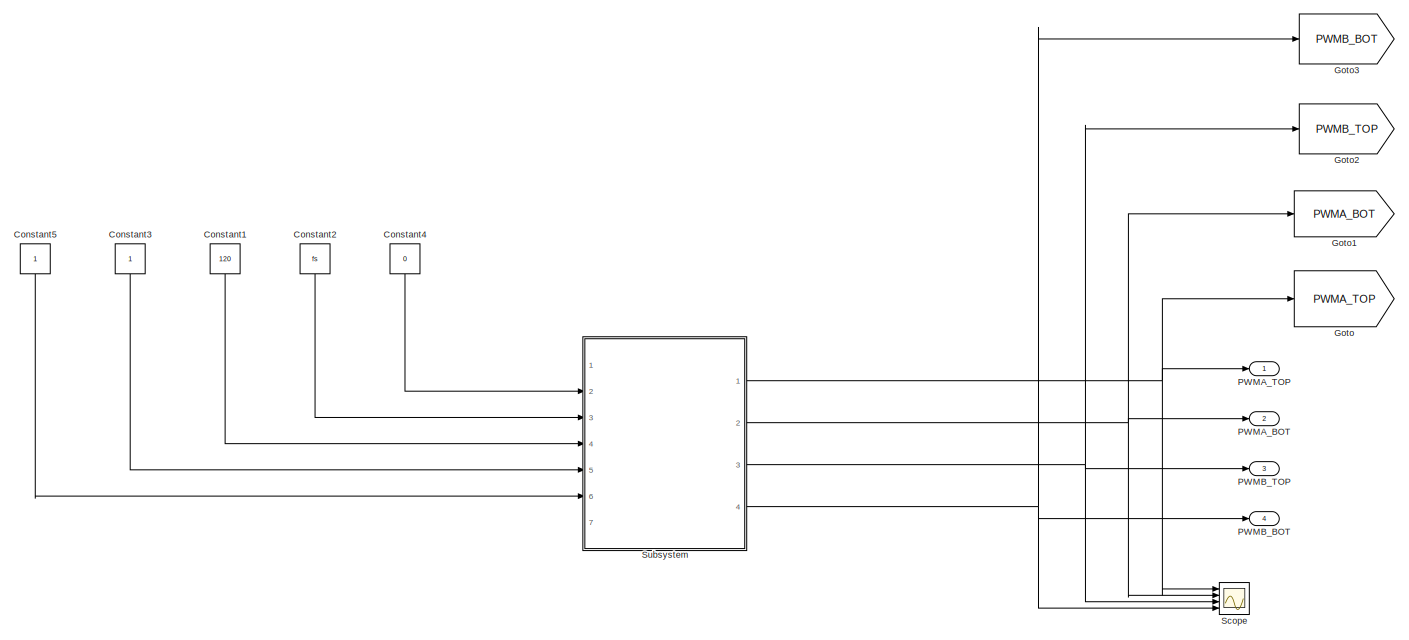
[diagram: root canvas - part 1/2, left side, full height]
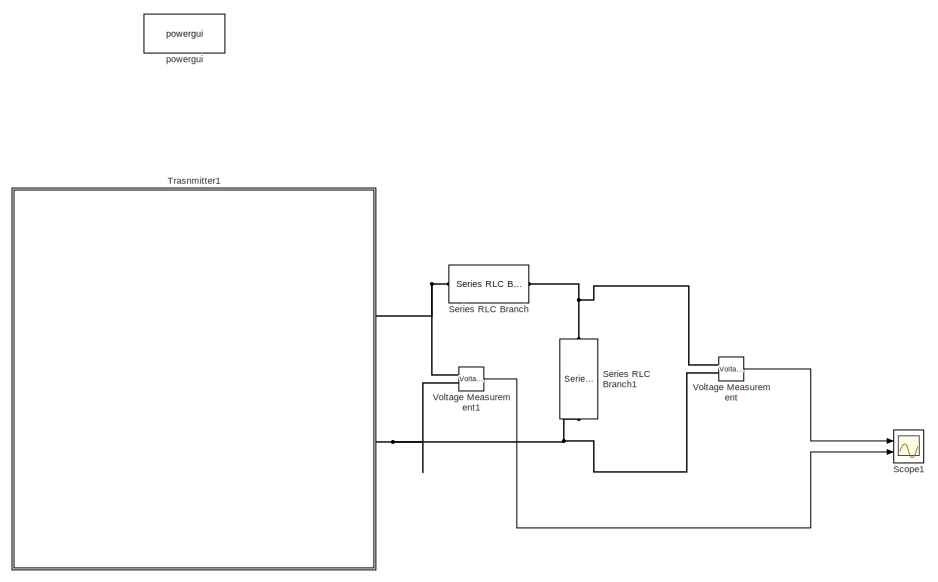
[diagram: root canvas - part 2/2, right side, full height]
MODEL slx_b57ddecea24d
KIND model
CONFIG AbsTol = auto
CONFIG EnableMultiTasking = off
CONFIG FixedStep = sampleTime
CONFIG InitFcn = fs=160e3; %Hz\nstopTime=0.01;\nsampleTime=1e-8;\ndeadtime= round(((1/fs)/20)/sampleTime);\nVdc=100;\nLp=82e-6; \nCp=1/ (Lp*4*pi*pi*150e3*150e3);\nRp=0.3;\nRLOAD=10
CONFIG MaxStep = auto
CONFIG MinStep = auto
CONFIG RelTol = 1e-3
CONFIG SampleTimeConstraint = Unconstrained
CONFIG Solver = FixedStepDiscrete
CONFIG SolverName = FixedStepDiscrete
CONFIG StartTime = 0.0
CONFIG StopTime = stopTime
BLOCK [Constant] Constant1
  Value = 120
BLOCK [Constant] Constant2
  Value = fs
BLOCK [Constant] Constant3
BLOCK [Constant] Constant4
  Value = 0
BLOCK [Constant] Constant5
BLOCK [Goto] Goto
  GotoTag = PWMA_TOP
  TagVisibility = global
BLOCK [Goto] Goto1
  GotoTag = PWMA_BOT
  TagVisibility = global
BLOCK [Goto] Goto2
  GotoTag = PWMB_TOP
  TagVisibility = global
BLOCK [Goto] Goto3
  GotoTag = PWMB_BOT
  TagVisibility = global
BLOCK [Outport] PWMA_BOT
  IconDisplay = Port number
  Port = 2
BLOCK [Outport] PWMA_TOP
  IconDisplay = Port number
BLOCK [Outport] PWMB_BOT
  IconDisplay = Port number
  Port = 4
BLOCK [Outport] PWMB_TOP
  IconDisplay = Port number
  Port = 3
BLOCK [Scope] Scope
  Floating = off
  NumInputPorts = 4
  Ports = [4]
  ScopeSpecificationString = Simulink.scopes.TimeScopeBlockCfg('CurrentConfiguration', extmgr.ConfigurationSet(extmgr.Configuration('Core','General UI',true),extmgr.Configuration('Core','Source UI',true),extmgr.Configuration('Sources','WiredSimulink',true,'DataLoggingVariableName','ScopeData2'),extmgr.Configuration('Visuals','Time Domain',true,'SerializedDisplays',{struct('MinYLimReal','-0.03501','MaxYLimReal','1.125','YLabel...<+1624ch>
BLOCK [Scope] Scope1
  Floating = off
  NumInputPorts = 2
  Ports = [2]
  ScopeSpecificationString = Simulink.scopes.TimeScopeBlockCfg('CurrentConfiguration', extmgr.ConfigurationSet(extmgr.Configuration('Core','General UI',true),extmgr.Configuration('Core','Source UI',true),extmgr.Configuration('Sources','WiredSimulink',true,'DataLoggingVariableName','ScopeData3'),extmgr.Configuration('Visuals','Time Domain',true,'SerializedDisplays',{struct('MinYLimReal','-22.62571','MaxYLimReal','22.66145','YL...<+2120ch>
BLOCK [Reference] Series RLC Branch  REF=powerlib/Elements/Series RLC Branch
  Ports = [0, 0, 0, 0, 0, 1, 1]
  SourceBlock = powerlib/Elements/Series RLC Branch
  SourceProductBaseCode = PS
  SourceProductName = Simscape Power Systems
  SourceType = Series RLC Branch
BLOCK [Reference] Series RLC Branch1  REF=powerlib/Elements/Series RLC Branch
  Ports = [0, 0, 0, 0, 0, 1, 1]
  SourceBlock = powerlib/Elements/Series RLC Branch
  SourceProductBaseCode = PS
  SourceProductName = Simscape Power Systems
  SourceType = Series RLC Branch
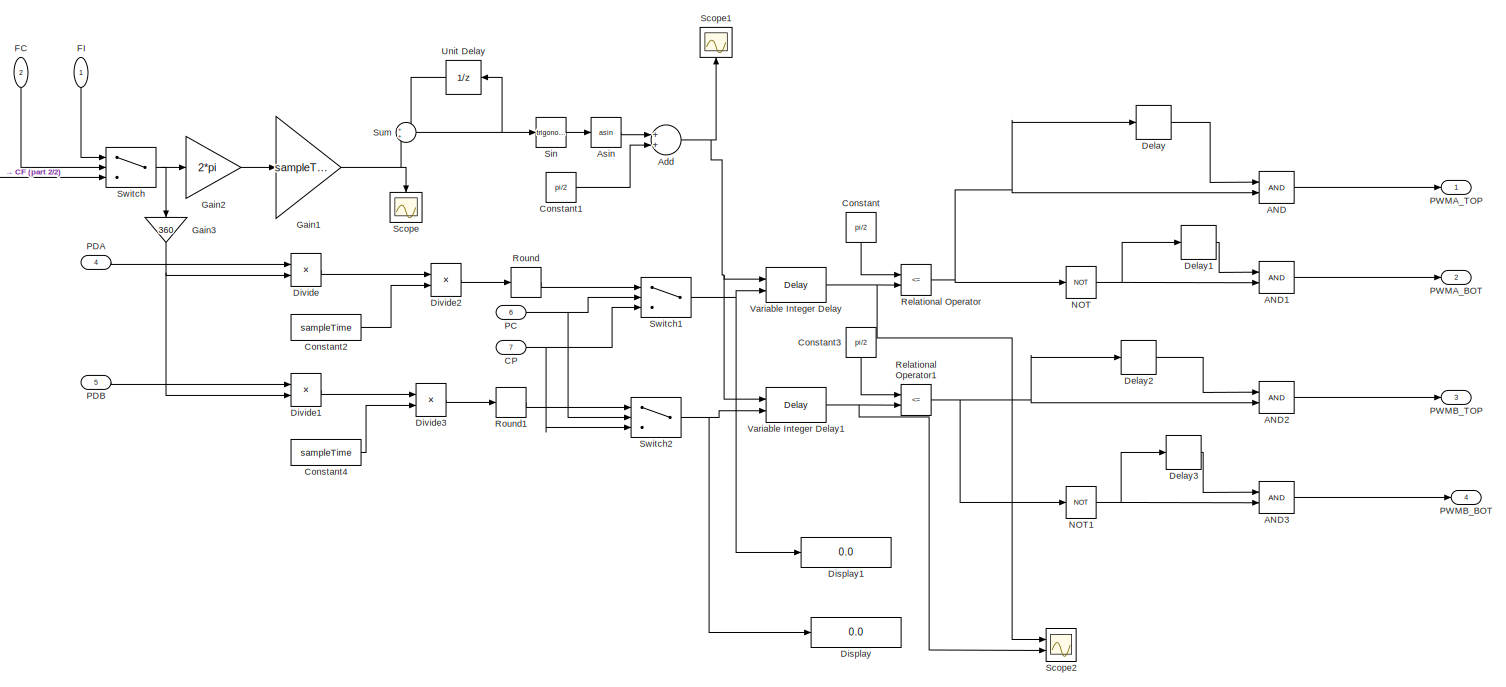
[diagram: Subsystem - part 1/2, most of the canvas]
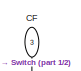
[diagram: Subsystem - part 2/2, top left region]
BLOCK [SubSystem] Subsystem
  Ports = [7, 4]
  RequestExecContextInheritance = off
BLOCK [Logic] Subsystem/AND
  AllPortsSameDT = off
  IconShape = distinctive
  OutDataTypeStr = boolean
  Ports = [2, 1]
BLOCK [Logic] Subsystem/AND1
  AllPortsSameDT = off
  IconShape = distinctive
  OutDataTypeStr = boolean
  Ports = [2, 1]
BLOCK [Logic] Subsystem/AND2
  AllPortsSameDT = off
  IconShape = distinctive
  OutDataTypeStr = boolean
  Ports = [2, 1]
BLOCK [Logic] Subsystem/AND3
  AllPortsSameDT = off
  IconShape = distinctive
  OutDataTypeStr = boolean
  Ports = [2, 1]
BLOCK [Sum] Subsystem/Add
  InputSameDT = off
  OutDataTypeStr = Inherit: Inherit via internal rule
  Ports = [2, 1]
  SaturateOnIntegerOverflow = off
BLOCK [Trigonometry] Subsystem/Asin
  Operator = asin
  Ports = [1, 1]
BLOCK [Inport] Subsystem/CF
  IconDisplay = Port number
  Port = 3
BLOCK [Inport] Subsystem/CP
  IconDisplay = Port number
  Port = 7
BLOCK [Constant] Subsystem/Constant
  Value = pi/2
BLOCK [Constant] Subsystem/Constant1
  Value = pi/2
BLOCK [Constant] Subsystem/Constant2
  Value = sampleTime
BLOCK [Constant] Subsystem/Constant3
  Value = pi/2
BLOCK [Constant] Subsystem/Constant4
  Value = sampleTime
BLOCK [Delay] Subsystem/Delay
  DelayLength = deadtime
  InputPortMap = u0
  Ports = [1, 1]
BLOCK [Delay] Subsystem/Delay1
  DelayLength = deadtime
  InputPortMap = u0
  Ports = [1, 1]
BLOCK [Delay] Subsystem/Delay2
  DelayLength = deadtime
  InputPortMap = u0
  Ports = [1, 1]
BLOCK [Delay] Subsystem/Delay3
  DelayLength = deadtime
  InputPortMap = u0
  Ports = [1, 1]
BLOCK [Display] Subsystem/Display
  Decimation = 1
  Ports = [1]
BLOCK [Display] Subsystem/Display1
  Decimation = 1
  Ports = [1]
BLOCK [Product] Subsystem/Divide
  InputSameDT = off
  Inputs = */
  OutDataTypeStr = Inherit: Inherit via internal rule
  Ports = [2, 1]
  RndMeth = Floor
  SaturateOnIntegerOverflow = off
BLOCK [Product] Subsystem/Divide1
  InputSameDT = off
  Inputs = */
  OutDataTypeStr = Inherit: Inherit via internal rule
  Ports = [2, 1]
  RndMeth = Floor
  SaturateOnIntegerOverflow = off
BLOCK [Product] Subsystem/Divide2
  InputSameDT = off
  Inputs = */
  OutDataTypeStr = Inherit: Inherit via internal rule
  Ports = [2, 1]
  RndMeth = Floor
  SaturateOnIntegerOverflow = off
BLOCK [Product] Subsystem/Divide3
  InputSameDT = off
  Inputs = */
  OutDataTypeStr = Inherit: Inherit via internal rule
  Ports = [2, 1]
  RndMeth = Floor
  SaturateOnIntegerOverflow = off
BLOCK [Inport] Subsystem/FC
  IconDisplay = Port number
  Port = 2
BLOCK [Inport] Subsystem/FI
  IconDisplay = Port number
BLOCK [Gain] Subsystem/Gain1
  Gain = sampleTime
  OutDataTypeStr = Inherit: Inherit via internal rule
  ParamDataTypeStr = Inherit: Inherit via internal rule
  SaturateOnIntegerOverflow = off
BLOCK [Gain] Subsystem/Gain2
  Gain = 2*pi
  OutDataTypeStr = Inherit: Inherit via internal rule
  ParamDataTypeStr = Inherit: Inherit via internal rule
  SaturateOnIntegerOverflow = off
BLOCK [Gain] Subsystem/Gain3
  Gain = 360
  OutDataTypeStr = Inherit: Inherit via internal rule
  ParamDataTypeStr = Inherit: Inherit via internal rule
  SaturateOnIntegerOverflow = off
BLOCK [Logic] Subsystem/NOT
  AllPortsSameDT = off
  IconShape = distinctive
  Operator = NOT
  OutDataTypeStr = boolean
  Ports = [1, 1]
BLOCK [Logic] Subsystem/NOT1
  AllPortsSameDT = off
  IconShape = distinctive
  Operator = NOT
  OutDataTypeStr = boolean
  Ports = [1, 1]
BLOCK [Inport] Subsystem/PC
  IconDisplay = Port number
  Port = 6
BLOCK [Inport] Subsystem/PDA
  IconDisplay = Port number
  Port = 4
BLOCK [Inport] Subsystem/PDB
  IconDisplay = Port number
  Port = 5
BLOCK [Outport] Subsystem/PWMA_BOT
  IconDisplay = Port number
  Port = 2
BLOCK [Outport] Subsystem/PWMA_TOP
  IconDisplay = Port number
BLOCK [Outport] Subsystem/PWMB_BOT
  IconDisplay = Port number
  Port = 4
BLOCK [Outport] Subsystem/PWMB_TOP
  IconDisplay = Port number
  Port = 3
BLOCK [RelationalOperator] Subsystem/Relational Operator
  InputSameDT = off
  Operator = <=
  OutDataTypeStr = boolean
  Ports = [2, 1]
  RndMeth = Simplest
BLOCK [RelationalOperator] Subsystem/Relational Operator1
  InputSameDT = off
  Operator = <=
  OutDataTypeStr = boolean
  Ports = [2, 1]
  RndMeth = Simplest
BLOCK [Rounding] Subsystem/Round
  Operator = round
BLOCK [Rounding] Subsystem/Round1
  Operator = round
BLOCK [Scope] Subsystem/Scope
  Floating = off
  NumInputPorts = 1
  Ports = [1]
  ScopeSpecificationString = Simulink.scopes.TimeScopeBlockCfg('CurrentConfiguration', extmgr.ConfigurationSet(extmgr.Configuration('Core','General UI',true),extmgr.Configuration('Core','Source UI',true),extmgr.Configuration('Sources','WiredSimulink',true),extmgr.Configuration('Visuals','Time Domain',true),extmgr.Configuration('Tools','Plot Navigation',true),extmgr.Configuration('Tools','Measurements',true)),'Version','2018a'...<+1ch>
BLOCK [Scope] Subsystem/Scope1
  Floating = off
  NumInputPorts = 1
  Ports = [1]
  ScopeSpecificationString = Simulink.scopes.TimeScopeBlockCfg('CurrentConfiguration', extmgr.ConfigurationSet(extmgr.Configuration('Core','General UI',true),extmgr.Configuration('Core','Source UI',true),extmgr.Configuration('Sources','WiredSimulink',true,'DataLoggingVariableName','ScopeData1'),extmgr.Configuration('Visuals','Time Domain',true,'SerializedDisplays',{struct('MinYLimReal','-0.2191','MaxYLimReal','3.94621','YLabe...<+1379ch>
BLOCK [Scope] Subsystem/Scope2
  Floating = off
  NumInputPorts = 2
  Ports = [2]
  ScopeSpecificationString = Simulink.scopes.TimeScopeBlockCfg('CurrentConfiguration', extmgr.ConfigurationSet(extmgr.Configuration('Core','General UI',true),extmgr.Configuration('Core','Source UI',true),extmgr.Configuration('Sources','WiredSimulink',true,'DataLoggingVariableName','ScopeData4'),extmgr.Configuration('Visuals','Time Domain',true,'SerializedDisplays',{struct('MinYLimReal','-0.16578','MaxYLimReal','3.41393','YLab...<+1486ch>
BLOCK [Trigonometry] Subsystem/Sin
  Ports = [1, 1]
BLOCK [Sum] Subsystem/Sum
  IconShape = round
  InputSameDT = off
  OutDataTypeStr = Inherit: Inherit via internal rule
  Ports = [2, 1]
  SaturateOnIntegerOverflow = off
BLOCK [Switch] Subsystem/Switch
  Criteria = u2 > Threshold
  InputSameDT = off
  SaturateOnIntegerOverflow = off
BLOCK [Switch] Subsystem/Switch1
  Criteria = u2 > Threshold
  InputSameDT = off
  SaturateOnIntegerOverflow = off
BLOCK [Switch] Subsystem/Switch2
  Criteria = u2 > Threshold
  InputSameDT = off
  SaturateOnIntegerOverflow = off
BLOCK [UnitDelay] Subsystem/Unit Delay
  InputProcessing = Elements as channels (sample based)
  SampleTime = -1
BLOCK [Delay] Subsystem/Variable Integer Delay
  DelayLengthSource = Input port
  InputPortMap = u0,p1
  Ports = [2, 1]
BLOCK [Delay] Subsystem/Variable Integer Delay1
  DelayLengthSource = Input port
  InputPortMap = u0,p1
  Ports = [2, 1]
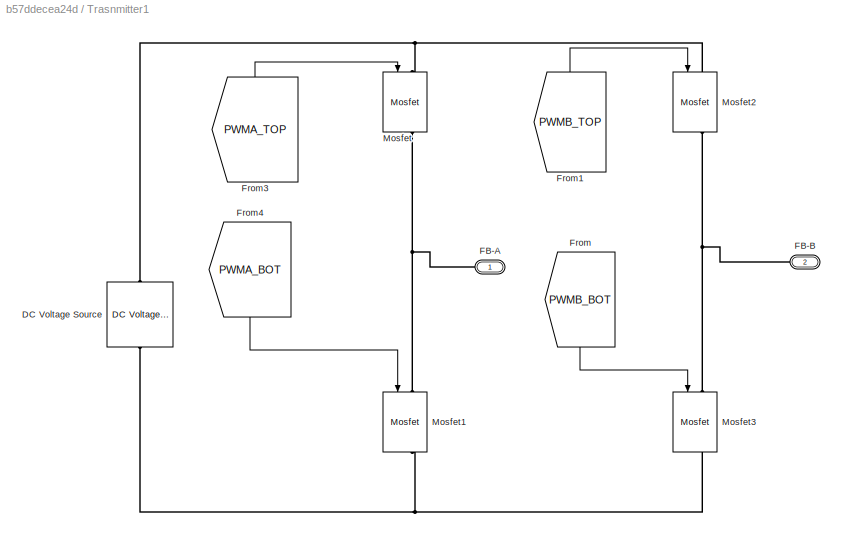
BLOCK [SubSystem] Trasnmitter1
  Ports = [0, 0, 0, 0, 0, 2]
  RequestExecContextInheritance = off
BLOCK [Reference] Trasnmitter1/DC Voltage Source  REF=powerlib/Electrical
Sources/DC Voltage Source
  Ports = [0, 0, 0, 0, 0, 1, 1]
  SourceBlock = powerlib/Electrical\nSources/DC Voltage Source
  SourceProductBaseCode = PS
  SourceProductName = Simscape Power Systems
  SourceType = DC Voltage Source
BLOCK [PMIOPort] Trasnmitter1/FB-A
  Side = Left
BLOCK [PMIOPort] Trasnmitter1/FB-B
  Port = 2
  Side = Left
BLOCK [From] Trasnmitter1/From
  GotoTag = PWMB_BOT
  TagVisibility = global
BLOCK [From] Trasnmitter1/From1
  GotoTag = PWMB_TOP
  TagVisibility = global
BLOCK [From] Trasnmitter1/From3
  GotoTag = PWMA_TOP
  TagVisibility = global
BLOCK [From] Trasnmitter1/From4
  GotoTag = PWMA_BOT
  TagVisibility = global
BLOCK [Reference] Trasnmitter1/Mosfet  REF=powerlib/Power
Electronics/Mosfet
  Ports = [1, 1, 0, 0, 0, 1, 1]
  SourceBlock = powerlib/Power\nElectronics/Mosfet
  SourceProductBaseCode = PS
  SourceProductName = Simscape Power Systems
  SourceType = Mosfet
BLOCK [Reference] Trasnmitter1/Mosfet1  REF=powerlib/Power
Electronics/Mosfet
  Ports = [1, 1, 0, 0, 0, 1, 1]
  SourceBlock = powerlib/Power\nElectronics/Mosfet
  SourceProductBaseCode = PS
  SourceProductName = Simscape Power Systems
  SourceType = Mosfet
BLOCK [Reference] Trasnmitter1/Mosfet2  REF=powerlib/Power
Electronics/Mosfet
  Ports = [1, 1, 0, 0, 0, 1, 1]
  SourceBlock = powerlib/Power\nElectronics/Mosfet
  SourceProductBaseCode = PS
  SourceProductName = Simscape Power Systems
  SourceType = Mosfet
BLOCK [Reference] Trasnmitter1/Mosfet3  REF=powerlib/Power
Electronics/Mosfet
  Ports = [1, 1, 0, 0, 0, 1, 1]
  SourceBlock = powerlib/Power\nElectronics/Mosfet
  SourceProductBaseCode = PS
  SourceProductName = Simscape Power Systems
  SourceType = Mosfet
BLOCK [Reference] Voltage Measurement  REF=powerlib/Measurements/Voltage Measurement
  Ports = [0, 1, 0, 0, 0, 2]
  SourceBlock = powerlib/Measurements/Voltage Measurement
  SourceProductBaseCode = PS
  SourceProductName = Simscape Power Systems
  SourceType = Voltage Measurement
  UserDataPersistent = on
BLOCK [Reference] Voltage Measurement1  REF=powerlib/Measurements/Voltage Measurement
  Ports = [0, 1, 0, 0, 0, 2]
  SourceBlock = powerlib/Measurements/Voltage Measurement
  SourceProductBaseCode = PS
  SourceProductName = Simscape Power Systems
  SourceType = Voltage Measurement
  UserDataPersistent = on
BLOCK [Reference] powergui  REF=powerlib/powergui
  Ports = []
  Priority = 1
  SourceBlock = powerlib/powergui
  SourceProductBaseCode = PS
  SourceProductName = Simscape Power Systems
  SourceType = PSB option menu block
LINE Constant1:1 -> Subsystem:4
LINE Constant2:1 -> Subsystem:3
LINE Constant3:1 -> Subsystem:5
LINE Constant4:1 -> Subsystem:2
LINE Constant5:1 -> Subsystem:6
LINE Subsystem/AND1:1 -> Subsystem/PWMA_BOT:1
LINE Subsystem/AND2:1 -> Subsystem/PWMB_TOP:1
LINE Subsystem/AND3:1 -> Subsystem/PWMB_BOT:1
LINE Subsystem/AND:1 -> Subsystem/PWMA_TOP:1
NET Subsystem/Add:1 -> Subsystem/Scope1:1, Subsystem/Variable Integer Delay1:1, Subsystem/Variable Integer Delay:1
LINE Subsystem/Asin:1 -> Subsystem/Add:1
LINE Subsystem/CF:1 -> Subsystem/Switch:3
NET Subsystem/CP:1 -> Subsystem/Switch1:3, Subsystem/Switch2:3
LINE Subsystem/Constant1:1 -> Subsystem/Add:2
LINE Subsystem/Constant2:1 -> Subsystem/Divide2:2
LINE Subsystem/Constant3:1 -> Subsystem/Relational Operator1:1
LINE Subsystem/Constant4:1 -> Subsystem/Divide3:2
LINE Subsystem/Constant:1 -> Subsystem/Relational Operator:1
LINE Subsystem/Delay1:1 -> Subsystem/AND1:1
LINE Subsystem/Delay2:1 -> Subsystem/AND2:1
LINE Subsystem/Delay3:1 -> Subsystem/AND3:1
LINE Subsystem/Delay:1 -> Subsystem/AND:1
LINE Subsystem/Divide1:1 -> Subsystem/Divide3:1
LINE Subsystem/Divide2:1 -> Subsystem/Round:1
LINE Subsystem/Divide3:1 -> Subsystem/Round1:1
LINE Subsystem/Divide:1 -> Subsystem/Divide2:1
LINE Subsystem/FC:1 -> Subsystem/Switch:2
LINE Subsystem/FI:1 -> Subsystem/Switch:1
NET Subsystem/Gain1:1 -> Subsystem/Scope:1, Subsystem/Sum:2
LINE Subsystem/Gain2:1 -> Subsystem/Gain1:1
NET Subsystem/Gain3:1 -> Subsystem/Divide1:2, Subsystem/Divide:2
NET Subsystem/NOT1:1 -> Subsystem/AND3:2, Subsystem/Delay3:1
NET Subsystem/NOT:1 -> Subsystem/AND1:2, Subsystem/Delay1:1
NET Subsystem/PC:1 -> Subsystem/Switch1:2, Subsystem/Switch2:2
LINE Subsystem/PDA:1 -> Subsystem/Divide:1
LINE Subsystem/PDB:1 -> Subsystem/Divide1:1
NET Subsystem/Relational Operator1:1 -> Subsystem/AND2:2, Subsystem/Delay2:1, Subsystem/NOT1:1
NET Subsystem/Relational Operator:1 -> Subsystem/AND:2, Subsystem/Delay:1, Subsystem/NOT:1
LINE Subsystem/Round1:1 -> Subsystem/Switch2:1
LINE Subsystem/Round:1 -> Subsystem/Switch1:1
LINE Subsystem/Sin:1 -> Subsystem/Asin:1
NET Subsystem/Sum:1 -> Subsystem/Sin:1, Subsystem/Unit Delay:1
NET Subsystem/Switch1:1 -> Subsystem/Display1:1, Subsystem/Variable Integer Delay:2
NET Subsystem/Switch2:1 -> Subsystem/Display:1, Subsystem/Variable Integer Delay1:2
NET Subsystem/Switch:1 -> Subsystem/Gain2:1, Subsystem/Gain3:1
LINE Subsystem/Unit Delay:1 -> Subsystem/Sum:1
NET Subsystem/Variable Integer Delay1:1 -> Subsystem/Relational Operator1:2, Subsystem/Scope2:2
NET Subsystem/Variable Integer Delay:1 -> Subsystem/Relational Operator:2, Subsystem/Scope2:1
NET Subsystem:1 -> Goto:1, PWMA_TOP:1, Scope:1
NET Subsystem:2 -> Goto1:1, PWMA_BOT:1, Scope:2
NET Subsystem:3 -> Goto2:1, PWMB_TOP:1, Scope:3
NET Subsystem:4 -> Goto3:1, PWMB_BOT:1, Scope:4
LINE Trasnmitter1/From1:1 -> Trasnmitter1/Mosfet2:1
LINE Trasnmitter1/From3:1 -> Trasnmitter1/Mosfet:1
LINE Trasnmitter1/From4:1 -> Trasnmitter1/Mosfet1:1
LINE Trasnmitter1/From:1 -> Trasnmitter1/Mosfet3:1
LINE Voltage Measurement1:1 -> Scope1:2
LINE Voltage Measurement:1 -> Scope1:1
PNET net1: Series RLC Branch1:LConn1 -- Series RLC Branch:RConn1 -- Voltage Measurement:LConn1
PNET net2: Series RLC Branch1:RConn1 -- Trasnmitter1:LConn2 -- Voltage Measurement1:LConn2 -- Voltage Measurement:LConn2
PNET net3: Series RLC Branch:LConn1 -- Trasnmitter1:LConn1 -- Voltage Measurement1:LConn1
PNET net4: Trasnmitter1/DC Voltage Source:LConn1 -- Trasnmitter1/Mosfet1:RConn1 -- Trasnmitter1/Mosfet3:RConn1
PNET net5: Trasnmitter1/DC Voltage Source:RConn1 -- Trasnmitter1/Mosfet2:LConn1 -- Trasnmitter1/Mosfet:LConn1
PNET net6: Trasnmitter1/FB-A:RConn1 -- Trasnmitter1/Mosfet1:LConn1 -- Trasnmitter1/Mosfet:RConn1
PNET net7: Trasnmitter1/FB-B:RConn1 -- Trasnmitter1/Mosfet2:RConn1 -- Trasnmitter1/Mosfet3:LConn1
note: NET lines group one-source signal fan-out (src -> all destinations, sorted); 1:1 wires keep LINE; PNET lines group multi-terminal physical nets as a canonical sorted terminal list (undirected conserving connections); 2-terminal nets keep the pairwise PLINE form
